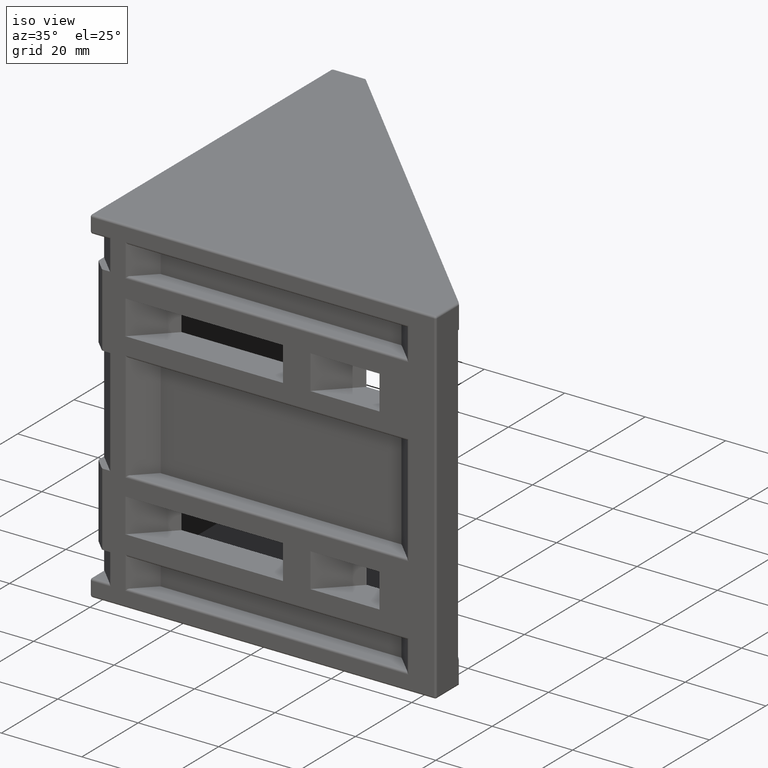
[diagram: clean part render]
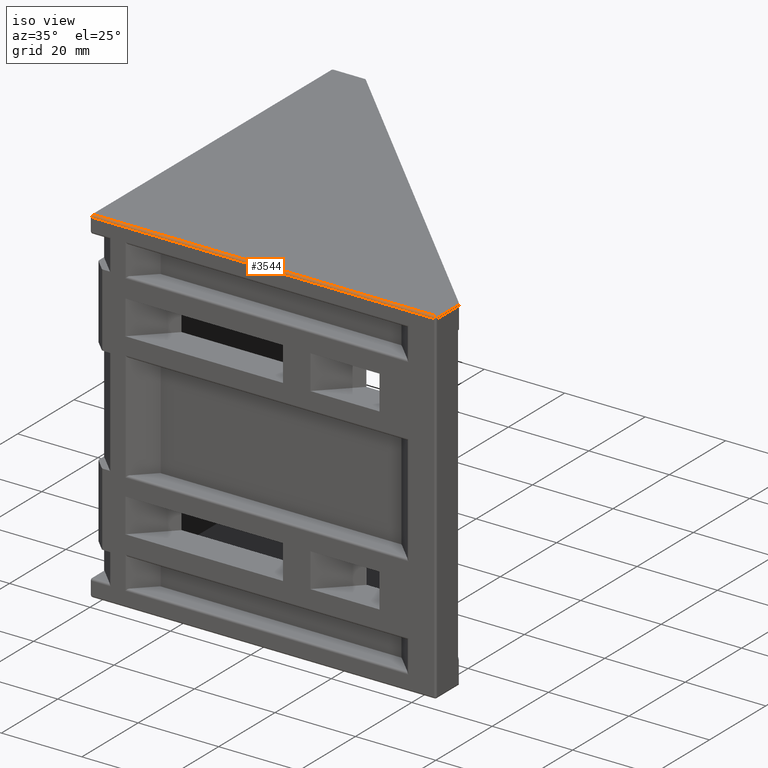
[diagram: same view with one face highlighted and labeled with its STEP entity id]
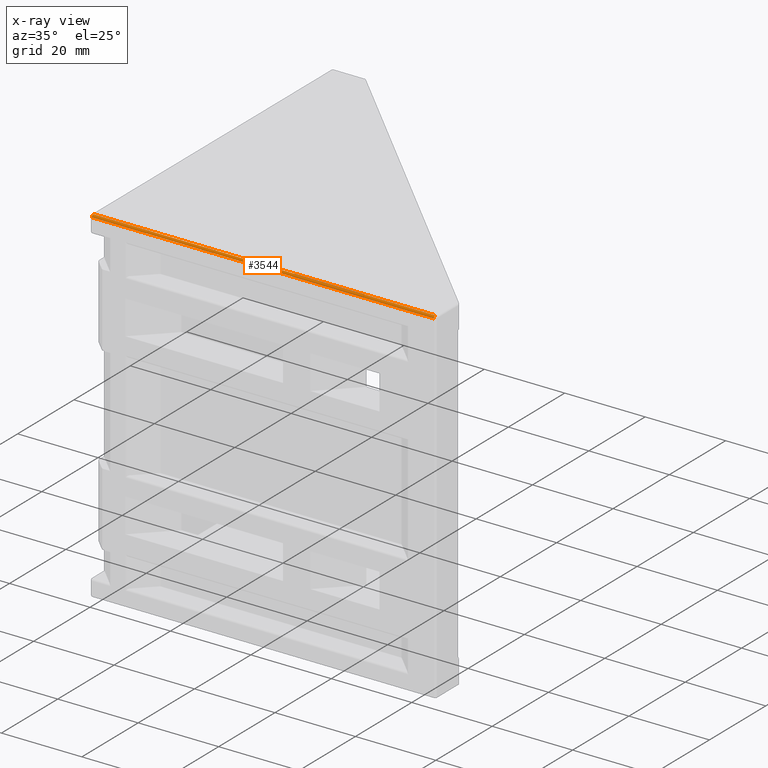
[diagram: x-ray of the same camera — body ghosted, the highlighted face saturated]
A machine part, iso view. The second image highlights one B-rep face of the part: STEP entity #3544.
The next image is the same camera in x-ray: the body ghosted, the highlighted face saturated — about 0% of this face is hidden behind the body in this view.
In plain terms, the highlighted cylindrical surface (edge-blend (fillet) strip) has radius 0.5 mm, axis along (1, 0, 0).
Its self-contained STEP definition (entity closure, byte-faithful):
#190=CIRCLE('',#3887,0.5);
#195=CIRCLE('',#3900,0.499999999999998);
#269=CYLINDRICAL_SURFACE('',#3910,0.5);
#408=FACE_OUTER_BOUND('',#622,.T.);
#622=EDGE_LOOP('',(#2996,#2997,#2998,#2999));
#851=LINE('',#5480,#1216);
#985=LINE('',#5929,#1350);
#1216=VECTOR('',#4376,10.);
#1350=VECTOR('',#4842,10.);
#1579=VERTEX_POINT('',#5477);
#1580=VERTEX_POINT('',#5479);
#1720=VERTEX_POINT('',#5888);
#1726=VERTEX_POINT('',#5910);
#1969=EDGE_CURVE('',#1580,#1579,#851,.T.);
#2176=EDGE_CURVE('',#1579,#1720,#190,.F.);
#2189=EDGE_CURVE('',#1726,#1580,#195,.F.);
#2197=EDGE_CURVE('',#1720,#1726,#985,.T.);
#2996=ORIENTED_EDGE('',*,*,#2176,.T.);
#2997=ORIENTED_EDGE('',*,*,#2197,.T.);
#2998=ORIENTED_EDGE('',*,*,#2189,.T.);
#2999=ORIENTED_EDGE('',*,*,#1969,.T.);
#3544=ADVANCED_FACE('',(#408),#269,.T.);
#3887=AXIS2_PLACEMENT_3D('',#5889,#4787,#4788);
#3900=AXIS2_PLACEMENT_3D('',#5913,#4818,#4819);
#3910=AXIS2_PLACEMENT_3D('',#5928,#4840,#4841);
#4376=DIRECTION('',(1.,5.16382802151236E-17,0.));
#4787=DIRECTION('center_axis',(1.,0.,0.));
#4788=DIRECTION('ref_axis',(0.,-1.,0.));
#4818=DIRECTION('center_axis',(-1.,0.,0.));
#4819=DIRECTION('ref_axis',(0.,0.,1.));
#4840=DIRECTION('center_axis',(1.,5.16382802151236E-17,0.));
#4841=DIRECTION('ref_axis',(0.,-0.707106781186542,0.707106781186553));
#4842=DIRECTION('',(-1.,-5.16382802151236E-17,0.));
#5477=CARTESIAN_POINT('',(85.5,4.44089209850063E-15,42.5));
#5479=CARTESIAN_POINT('',(0.5,2.62687423138906E-17,42.5));
#5480=CARTESIAN_POINT('',(16.1162932381858,8.32667268468867E-16,42.5));
#5888=CARTESIAN_POINT('',(85.5,0.500000000000004,43.));
#5889=CARTESIAN_POINT('Origin',(85.5,0.500000000000004,42.5));
#5910=CARTESIAN_POINT('',(0.5,0.499999999999998,43.));
#5913=CARTESIAN_POINT('Origin',(0.5,0.5,42.5));
#5928=CARTESIAN_POINT('Origin',(16.1162932381858,0.5,42.5));
#5929=CARTESIAN_POINT('',(16.1162932381858,0.5,43.));